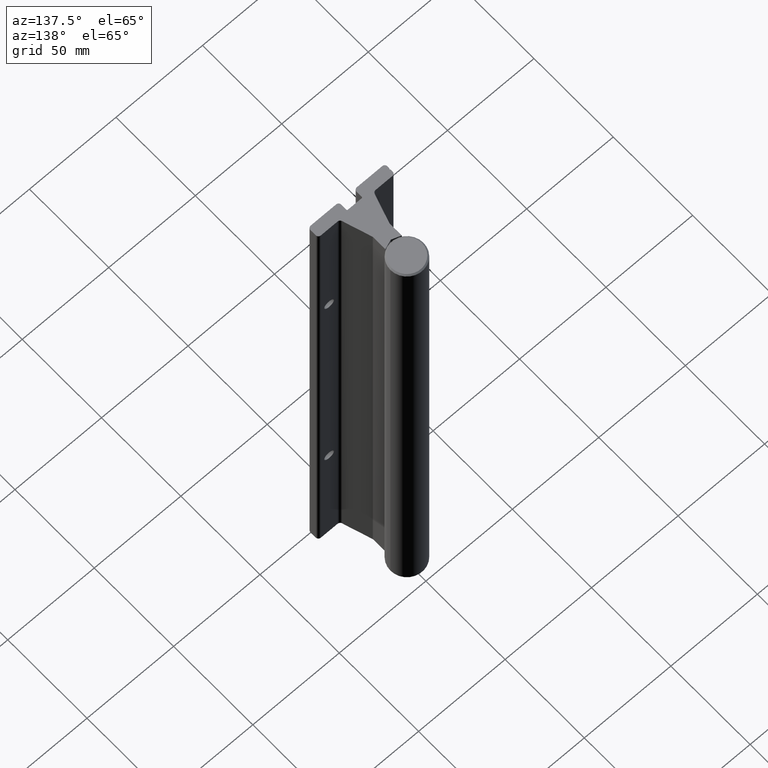
[diagram: clean part render]
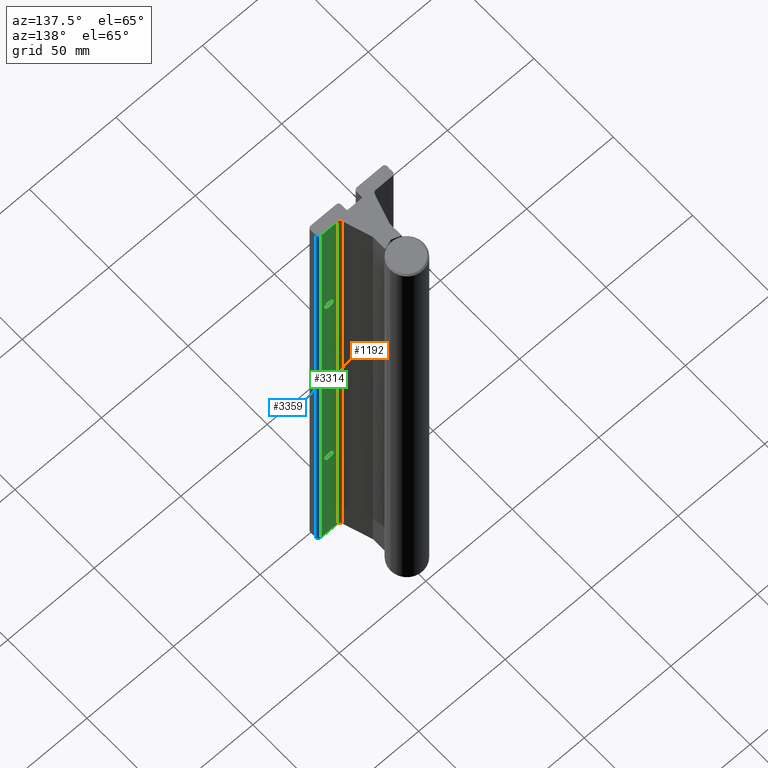
[diagram: same view with three faces highlighted in distinct colors, each labeled with its STEP entity id]
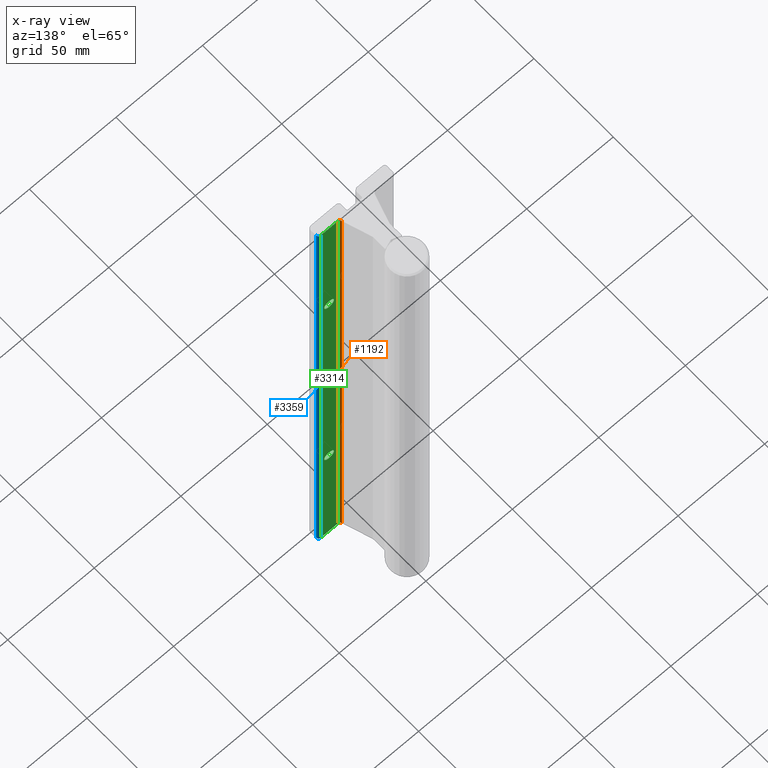
[diagram: x-ray of the same camera — body ghosted, the three highlighted faces saturated]
A machine part, auxiliary view with three faces highlighted in distinct colors.
The next image is the same camera in x-ray (body ghosted, the three faces saturated) — at least one of them is partly hidden behind the body in this view.
Their STEP definitions:

[orange] entity #1192 — the highlighted cylindrical surface (edge-blend (fillet) strip) has radius 1.5875 mm, axis along (0, 0, 1).
#170 = VERTEX_POINT ( 'NONE', #1464 ) ;
#246 = AXIS2_PLACEMENT_3D ( 'NONE', #2667, #3323, #1780 ) ;
#432 = CARTESIAN_POINT ( 'NONE',  ( 0.4315582357841835637, 0.3125000000000017764, 0.0000000000000000000 ) ) ;
#568 = EDGE_CURVE ( 'NONE', #632, #2556, #2732, .T. ) ;
#594 = EDGE_CURVE ( 'NONE', #170, #3401, #2012, .T. ) ;
#632 = VERTEX_POINT ( 'NONE', #1975 ) ;
#690 = ORIENTED_EDGE ( 'NONE', *, *, #568, .T. ) ;
#747 = DIRECTION ( 'NONE',  ( -0.0000000000000000000, -0.0000000000000000000, -1.000000000000000000 ) ) ;
#752 = CARTESIAN_POINT ( 'NONE',  ( 0.4315582357841835637, 0.3125000000000017764, -14.10463218188033174 ) ) ;
#820 = CIRCLE ( 'NONE', #246, 0.06250000000000151268 ) ;
#999 = EDGE_CURVE ( 'NONE', #3401, #2556, #1713, .T. ) ;
#1049 = CARTESIAN_POINT ( 'NONE',  ( 0.3721172034999984390, 0.2931864378999994303, -14.10463218188033174 ) ) ;
#1058 = DIRECTION ( 'NONE',  ( 1.000000000000000000, 0.0000000000000000000, 0.0000000000000000000 ) ) ;
#1191 = CARTESIAN_POINT ( 'NONE',  ( 0.4315582357000011249, 0.2500000000000002776, 0.0000000000000000000 ) ) ;
#1192 = ADVANCED_FACE ( 'NONE', ( #2185 ), #3199, .F. ) ;
#1291 = AXIS2_PLACEMENT_3D ( 'NONE', #752, #2606, #2307 ) ;
#1379 = DIRECTION ( 'NONE',  ( 0.0000000000000000000, 0.0000000000000000000, 1.000000000000000000 ) ) ;
#1464 = CARTESIAN_POINT ( 'NONE',  ( 0.4315582357000011249, 0.2500000000000002220, -12.00000000000000178 ) ) ;
#1666 = AXIS2_PLACEMENT_3D ( 'NONE', #432, #747, #1058 ) ;
#1713 = CIRCLE ( 'NONE', #1666, 0.06250000000000151268 ) ;
#1780 = DIRECTION ( 'NONE',  ( 1.000000000000000000, 0.0000000000000000000, 0.0000000000000000000 ) ) ;
#1907 = VECTOR ( 'NONE', #3879, 39.37007874015748143 ) ;
#1975 = CARTESIAN_POINT ( 'NONE',  ( 0.3721172034999984390, 0.2931864378999994303, -12.00000000000000178 ) ) ;
#2012 = LINE ( 'NONE', #2641, #1907 ) ;
#2094 = CARTESIAN_POINT ( 'NONE',  ( 0.3721172034999986056, 0.2931864378999994303, 0.0000000000000000000 ) ) ;
#2185 = FACE_OUTER_BOUND ( 'NONE', #4009, .T. ) ;
#2291 = VECTOR ( 'NONE', #1379, 39.37007874015748143 ) ;
#2307 = DIRECTION ( 'NONE',  ( 1.000000000000000000, 0.0000000000000000000, 0.0000000000000000000 ) ) ;
#2379 = ORIENTED_EDGE ( 'NONE', *, *, #3951, .F. ) ;
#2556 = VERTEX_POINT ( 'NONE', #2094 ) ;
#2606 = DIRECTION ( 'NONE',  ( 0.0000000000000000000, 0.0000000000000000000, 1.000000000000000000 ) ) ;
#2641 = CARTESIAN_POINT ( 'NONE',  ( 0.4315582357000011249, 0.2500000000000002220, -14.10463218188033174 ) ) ;
#2667 = CARTESIAN_POINT ( 'NONE',  ( 0.4315582357841835637, 0.3125000000000017764, -12.00000000000000178 ) ) ;
#2732 = LINE ( 'NONE', #1049, #2291 ) ;
#3199 = CYLINDRICAL_SURFACE ( 'NONE', #1291, 0.06250000000000151268 ) ;
#3323 = DIRECTION ( 'NONE',  ( 0.0000000000000000000, 0.0000000000000000000, 1.000000000000000000 ) ) ;
#3401 = VERTEX_POINT ( 'NONE', #1191 ) ;
#3474 = ORIENTED_EDGE ( 'NONE', *, *, #594, .F. ) ;
#3703 = ORIENTED_EDGE ( 'NONE', *, *, #999, .F. ) ;
#3879 = DIRECTION ( 'NONE',  ( 0.0000000000000000000, 0.0000000000000000000, 1.000000000000000000 ) ) ;
#3951 = EDGE_CURVE ( 'NONE', #632, #170, #820, .T. ) ;
#4009 = EDGE_LOOP ( 'NONE', ( #2379, #690, #3703, #3474 ) ) ;

[blue] entity #3359 — the highlighted cylindrical surface (edge-blend (fillet) strip) has radius 1.524 mm, axis along (0, 0, 1).
#80 = VERTEX_POINT ( 'NONE', #782 ) ;
#91 = FACE_OUTER_BOUND ( 'NONE', #1377, .T. ) ;
#164 = CARTESIAN_POINT ( 'NONE',  ( 0.8149999999999996136, 0.1900000000000000300, -12.00000000000000178 ) ) ;
#174 = CARTESIAN_POINT ( 'NONE',  ( 0.8749999999999997780, 0.1900000000000000300, 0.0000000000000000000 ) ) ;
#185 = EDGE_CURVE ( 'NONE', #3337, #2015, #3102, .T. ) ;
#371 = CIRCLE ( 'NONE', #2116, 0.06000000000000017819 ) ;
#447 = CARTESIAN_POINT ( 'NONE',  ( 0.8149999999999996136, 0.2500000000000001110, 0.0000000000000000000 ) ) ;
#449 = CARTESIAN_POINT ( 'NONE',  ( 0.8749999999999997780, 0.1900000000000000300, -12.00000000000000178 ) ) ;
#782 = CARTESIAN_POINT ( 'NONE',  ( 0.8149999999999996136, 0.2500000000000001110, -12.00000000000000178 ) ) ;
#839 = DIRECTION ( 'NONE',  ( -0.0000000000000000000, -0.0000000000000000000, -1.000000000000000000 ) ) ;
#1121 = DIRECTION ( 'NONE',  ( 0.0000000000000000000, 0.0000000000000000000, 1.000000000000000000 ) ) ;
#1123 = CIRCLE ( 'NONE', #2595, 0.06000000000000017819 ) ;
#1283 = ORIENTED_EDGE ( 'NONE', *, *, #2576, .F. ) ;
#1377 = EDGE_LOOP ( 'NONE', ( #1283, #2440, #1770, #3942 ) ) ;
#1452 = DIRECTION ( 'NONE',  ( 1.000000000000000000, 0.0000000000000000000, 0.0000000000000000000 ) ) ;
#1473 = VECTOR ( 'NONE', #2400, 39.37007874015748143 ) ;
#1614 = CYLINDRICAL_SURFACE ( 'NONE', #3682, 0.06000000000000017819 ) ;
#1770 = ORIENTED_EDGE ( 'NONE', *, *, #2458, .F. ) ;
#1861 = VERTEX_POINT ( 'NONE', #447 ) ;
#2015 = VERTEX_POINT ( 'NONE', #174 ) ;
#2116 = AXIS2_PLACEMENT_3D ( 'NONE', #164, #839, #2403 ) ;
#2275 = DIRECTION ( 'NONE',  ( 0.0000000000000000000, 0.0000000000000000000, 1.000000000000000000 ) ) ;
#2400 = DIRECTION ( 'NONE',  ( 0.0000000000000000000, 0.0000000000000000000, 1.000000000000000000 ) ) ;
#2403 = DIRECTION ( 'NONE',  ( 1.000000000000000000, 0.0000000000000000000, 0.0000000000000000000 ) ) ;
#2440 = ORIENTED_EDGE ( 'NONE', *, *, #2918, .T. ) ;
#2458 = EDGE_CURVE ( 'NONE', #2015, #1861, #1123, .T. ) ;
#2576 = EDGE_CURVE ( 'NONE', #80, #3337, #371, .T. ) ;
#2595 = AXIS2_PLACEMENT_3D ( 'NONE', #3611, #1121, #2665 ) ;
#2665 = DIRECTION ( 'NONE',  ( 1.000000000000000000, 0.0000000000000000000, 0.0000000000000000000 ) ) ;
#2716 = VECTOR ( 'NONE', #2275, 39.37007874015748143 ) ;
#2734 = CARTESIAN_POINT ( 'NONE',  ( 0.8149999999999996136, 0.1900000000000000300, -14.10463218188033174 ) ) ;
#2832 = CARTESIAN_POINT ( 'NONE',  ( 0.8149999999999996136, 0.2500000000000001110, -14.10463218188033174 ) ) ;
#2918 = EDGE_CURVE ( 'NONE', #80, #1861, #3534, .T. ) ;
#3102 = LINE ( 'NONE', #3308, #1473 ) ;
#3308 = CARTESIAN_POINT ( 'NONE',  ( 0.8749999999999997780, 0.1900000000000000300, -14.10463218188033174 ) ) ;
#3337 = VERTEX_POINT ( 'NONE', #449 ) ;
#3348 = DIRECTION ( 'NONE',  ( 0.0000000000000000000, 0.0000000000000000000, 1.000000000000000000 ) ) ;
#3359 = ADVANCED_FACE ( 'NONE', ( #91 ), #1614, .T. ) ;
#3534 = LINE ( 'NONE', #2832, #2716 ) ;
#3611 = CARTESIAN_POINT ( 'NONE',  ( 0.8149999999999996136, 0.1900000000000000300, 0.0000000000000000000 ) ) ;
#3682 = AXIS2_PLACEMENT_3D ( 'NONE', #2734, #3348, #1452 ) ;
#3942 = ORIENTED_EDGE ( 'NONE', *, *, #185, .F. ) ;

[green] entity #3314 — the highlighted planar face has unit normal (0, 1, 0).
#80 = VERTEX_POINT ( 'NONE', #782 ) ;
#129 = EDGE_CURVE ( 'NONE', #200, #1421, #3306, .T. ) ;
#170 = VERTEX_POINT ( 'NONE', #1464 ) ;
#178 = CARTESIAN_POINT ( 'NONE',  ( 0.6250000000000000000, 0.2500000000000000555, -3.110500000000000043 ) ) ;
#189 = DIRECTION ( 'NONE',  ( -1.000000000000000000, 3.090325784688081574E-16, 0.0000000000000000000 ) ) ;
#200 = VERTEX_POINT ( 'NONE', #3290 ) ;
#201 = ORIENTED_EDGE ( 'NONE', *, *, #3536, .F. ) ;
#256 = ORIENTED_EDGE ( 'NONE', *, *, #736, .T. ) ;
#296 = DIRECTION ( 'NONE',  ( -1.000000000000000000, 3.090325784688081574E-16, 0.0000000000000000000 ) ) ;
#329 = DIRECTION ( 'NONE',  ( -2.671704266472630380E-16, -1.000000000000000000, 0.0000000000000000000 ) ) ;
#433 = AXIS2_PLACEMENT_3D ( 'NONE', #2205, #329, #296 ) ;
#447 = CARTESIAN_POINT ( 'NONE',  ( 0.8149999999999996136, 0.2500000000000001110, 0.0000000000000000000 ) ) ;
#594 = EDGE_CURVE ( 'NONE', #170, #3401, #2012, .T. ) ;
#618 = CIRCLE ( 'NONE', #433, 0.1104999999999999594 ) ;
#650 = DIRECTION ( 'NONE',  ( -1.000000000000000000, 3.090325784688081574E-16, 0.0000000000000000000 ) ) ;
#736 = EDGE_CURVE ( 'NONE', #2414, #3980, #3003, .T. ) ;
#782 = CARTESIAN_POINT ( 'NONE',  ( 0.8149999999999996136, 0.2500000000000001110, -12.00000000000000178 ) ) ;
#805 = ORIENTED_EDGE ( 'NONE', *, *, #2965, .F. ) ;
#893 = AXIS2_PLACEMENT_3D ( 'NONE', #2924, #1383, #189 ) ;
#963 = CARTESIAN_POINT ( 'NONE',  ( 0.6250000000000000000, 0.2500000000000000555, -9.110500000000001819 ) ) ;
#1003 = AXIS2_PLACEMENT_3D ( 'NONE', #1274, #1899, #650 ) ;
#1070 = PLANE ( 'NONE',  #3527 ) ;
#1074 = LINE ( 'NONE', #2206, #3043 ) ;
#1144 = ORIENTED_EDGE ( 'NONE', *, *, #2918, .F. ) ;
#1191 = CARTESIAN_POINT ( 'NONE',  ( 0.4315582357000011249, 0.2500000000000002776, 0.0000000000000000000 ) ) ;
#1249 = EDGE_LOOP ( 'NONE', ( #2538, #3691 ) ) ;
#1274 = CARTESIAN_POINT ( 'NONE',  ( 0.6250000000000000000, 0.2500000000000000555, -3.000000000000000444 ) ) ;
#1331 = CARTESIAN_POINT ( 'NONE',  ( 0.8149999999999996136, 0.2500000000000001110, -12.00000000000000178 ) ) ;
#1383 = DIRECTION ( 'NONE',  ( -2.671704266472630380E-16, -1.000000000000000000, 0.0000000000000000000 ) ) ;
#1408 = DIRECTION ( 'NONE',  ( 2.671704266472630380E-16, 1.000000000000000000, -0.0000000000000000000 ) ) ;
#1421 = VERTEX_POINT ( 'NONE', #963 ) ;
#1464 = CARTESIAN_POINT ( 'NONE',  ( 0.4315582357000011249, 0.2500000000000002220, -12.00000000000000178 ) ) ;
#1522 = DIRECTION ( 'NONE',  ( -2.671704266472630380E-16, -1.000000000000000000, 0.0000000000000000000 ) ) ;
#1640 = DIRECTION ( 'NONE',  ( 1.000000000000000000, -2.671704266472630380E-16, 0.0000000000000000000 ) ) ;
#1716 = EDGE_CURVE ( 'NONE', #3980, #2414, #2722, .T. ) ;
#1861 = VERTEX_POINT ( 'NONE', #447 ) ;
#1885 = CARTESIAN_POINT ( 'NONE',  ( 0.6250000000000000000, 0.2500000000000000555, -2.889500000000000401 ) ) ;
#1899 = DIRECTION ( 'NONE',  ( -2.671704266472630380E-16, -1.000000000000000000, 0.0000000000000000000 ) ) ;
#1907 = VECTOR ( 'NONE', #3879, 39.37007874015748143 ) ;
#1936 = ORIENTED_EDGE ( 'NONE', *, *, #1716, .T. ) ;
#2012 = LINE ( 'NONE', #2641, #1907 ) ;
#2056 = FACE_BOUND ( 'NONE', #2699, .T. ) ;
#2141 = EDGE_CURVE ( 'NONE', #1421, #200, #618, .T. ) ;
#2205 = CARTESIAN_POINT ( 'NONE',  ( 0.6250000000000000000, 0.2500000000000000555, -9.000000000000001776 ) ) ;
#2206 = CARTESIAN_POINT ( 'NONE',  ( 0.8149999999999996136, 0.2500000000000001110, 0.0000000000000000000 ) ) ;
#2275 = DIRECTION ( 'NONE',  ( 0.0000000000000000000, 0.0000000000000000000, 1.000000000000000000 ) ) ;
#2313 = EDGE_LOOP ( 'NONE', ( #805, #2774, #201, #1144 ) ) ;
#2355 = DIRECTION ( 'NONE',  ( -1.000000000000000000, 3.090325784688081574E-16, 0.0000000000000000000 ) ) ;
#2414 = VERTEX_POINT ( 'NONE', #1885 ) ;
#2538 = ORIENTED_EDGE ( 'NONE', *, *, #2141, .T. ) ;
#2641 = CARTESIAN_POINT ( 'NONE',  ( 0.4315582357000011249, 0.2500000000000002220, -14.10463218188033174 ) ) ;
#2658 = CARTESIAN_POINT ( 'NONE',  ( 0.6250000000000000000, 0.2500000000000000555, -3.000000000000000444 ) ) ;
#2699 = EDGE_LOOP ( 'NONE', ( #1936, #256 ) ) ;
#2716 = VECTOR ( 'NONE', #2275, 39.37007874015748143 ) ;
#2722 = CIRCLE ( 'NONE', #1003, 0.1104999999999999594 ) ;
#2774 = ORIENTED_EDGE ( 'NONE', *, *, #594, .T. ) ;
#2820 = DIRECTION ( 'NONE',  ( -1.000000000000000000, 2.671704266472630380E-16, 0.0000000000000000000 ) ) ;
#2832 = CARTESIAN_POINT ( 'NONE',  ( 0.8149999999999996136, 0.2500000000000001110, -14.10463218188033174 ) ) ;
#2918 = EDGE_CURVE ( 'NONE', #80, #1861, #3534, .T. ) ;
#2924 = CARTESIAN_POINT ( 'NONE',  ( 0.6250000000000000000, 0.2500000000000000555, -9.000000000000001776 ) ) ;
#2965 = EDGE_CURVE ( 'NONE', #170, #80, #3730, .T. ) ;
#2968 = CARTESIAN_POINT ( 'NONE',  ( 0.8149999999999996136, 0.2500000000000001110, -14.10463218188033174 ) ) ;
#3003 = CIRCLE ( 'NONE', #3178, 0.1104999999999999594 ) ;
#3043 = VECTOR ( 'NONE', #2820, 39.37007874015748143 ) ;
#3150 = FACE_OUTER_BOUND ( 'NONE', #2313, .T. ) ;
#3178 = AXIS2_PLACEMENT_3D ( 'NONE', #2658, #1522, #2355 ) ;
#3288 = FACE_BOUND ( 'NONE', #1249, .T. ) ;
#3290 = CARTESIAN_POINT ( 'NONE',  ( 0.6250000000000000000, 0.2500000000000000555, -8.889500000000001734 ) ) ;
#3293 = VECTOR ( 'NONE', #1640, 39.37007874015748143 ) ;
#3306 = CIRCLE ( 'NONE', #893, 0.1104999999999999594 ) ;
#3314 = ADVANCED_FACE ( 'NONE', ( #3288, #2056, #3150 ), #1070, .T. ) ;
#3401 = VERTEX_POINT ( 'NONE', #1191 ) ;
#3527 = AXIS2_PLACEMENT_3D ( 'NONE', #2968, #1408, #3567 ) ;
#3534 = LINE ( 'NONE', #2832, #2716 ) ;
#3536 = EDGE_CURVE ( 'NONE', #1861, #3401, #1074, .T. ) ;
#3567 = DIRECTION ( 'NONE',  ( -1.000000000000000000, 2.671704266472630380E-16, 0.0000000000000000000 ) ) ;
#3691 = ORIENTED_EDGE ( 'NONE', *, *, #129, .T. ) ;
#3730 = LINE ( 'NONE', #1331, #3293 ) ;
#3879 = DIRECTION ( 'NONE',  ( 0.0000000000000000000, 0.0000000000000000000, 1.000000000000000000 ) ) ;
#3980 = VERTEX_POINT ( 'NONE', #178 ) ;